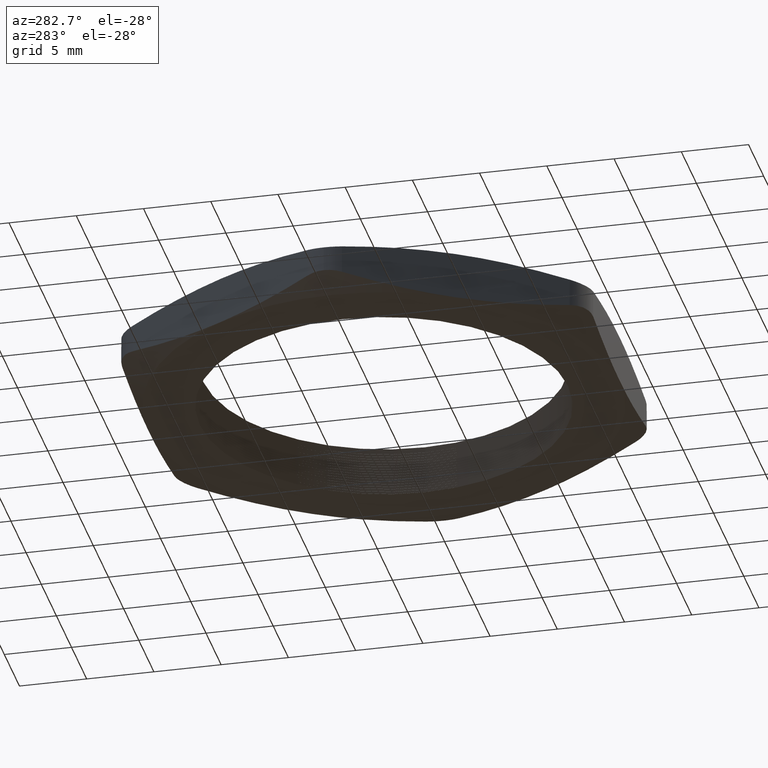
[diagram: clean part render]
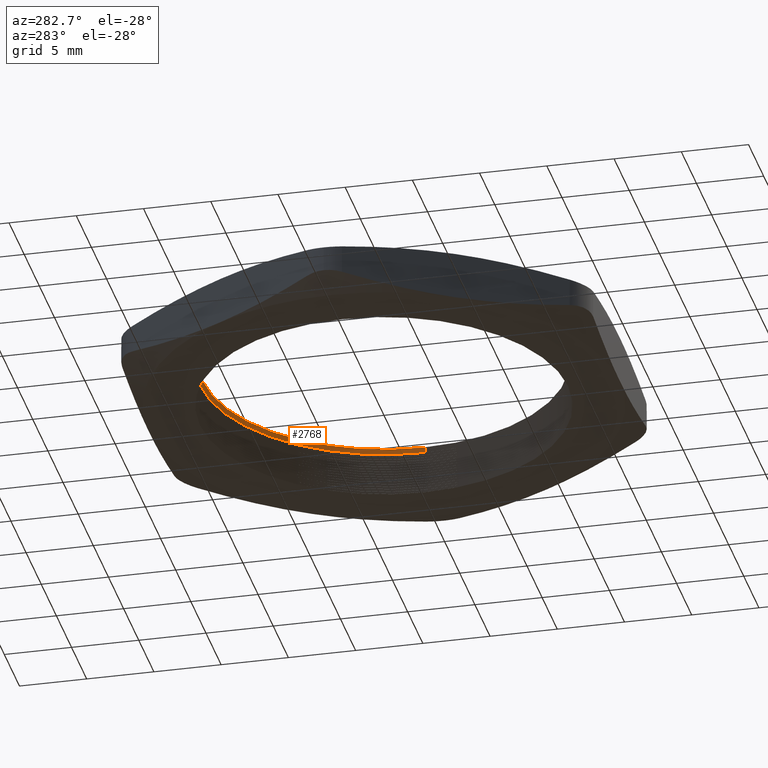
[diagram: same view with one face highlighted and labeled with its STEP entity id]
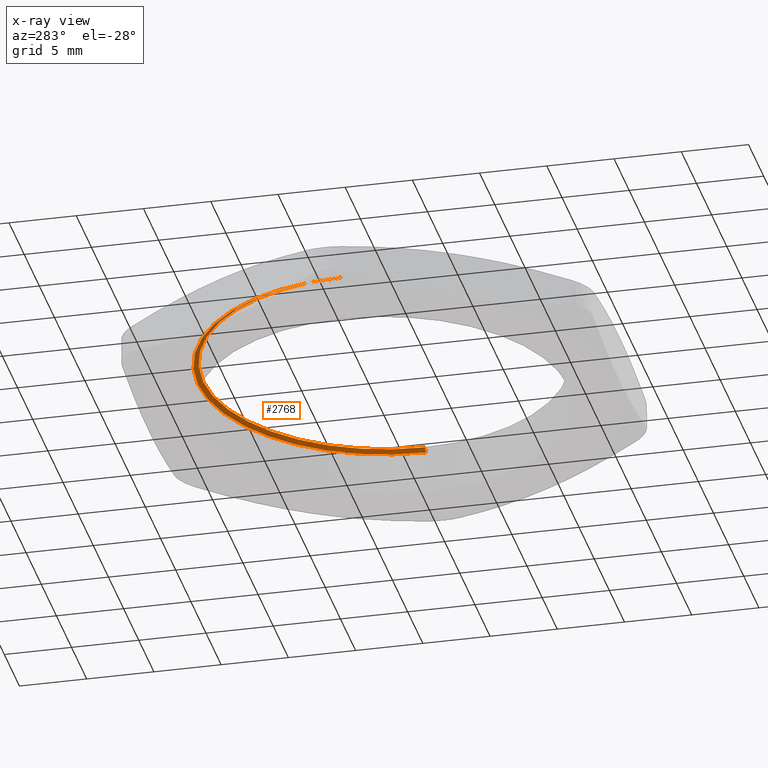
[diagram: x-ray of the same camera — body ghosted, the highlighted face saturated]
A machine part, auxiliary view. The second image highlights one B-rep face of the part: STEP entity #2768.
The next image is the same camera in x-ray: the body ghosted, the highlighted face saturated — about 21% of this face is hidden behind the body in this view.
In plain terms, the highlighted conical surface has half-angle 60 deg.
Its self-contained STEP definition (entity closure, byte-faithful):
#112 = EDGE_CURVE ( 'NONE', #682, #681, #1070, .T. ) ;
#664 = VERTEX_POINT ( 'NONE', #2051 ) ;
#667 = VERTEX_POINT ( 'NONE', #2045 ) ;
#681 = VERTEX_POINT ( 'NONE', #2079 ) ;
#682 = VERTEX_POINT ( 'NONE', #2078 ) ;
#685 = EDGE_CURVE ( 'NONE', #681, #667, #2077, .T. ) ;
#688 = EDGE_CURVE ( 'NONE', #682, #664, #2126, .T. ) ;
#1066 = DIRECTION ( 'NONE',  ( -1.000000000000000000, 0.0000000000000000000, 0.0000000000000000000 ) ) ;
#1067 = DIRECTION ( 'NONE',  ( 0.0000000000000000000, 0.0000000000000000000, -1.000000000000000000 ) ) ;
#1068 = CARTESIAN_POINT ( 'NONE',  ( 0.0000000000000000000, 0.0000000000000000000, 0.1400000000000000100 ) ) ;
#1069 = AXIS2_PLACEMENT_3D ( 'NONE', #1068, #1067, #1066 ) ;
#1070 = CIRCLE ( 'NONE', #1069, 0.5299999999999999200 ) ;
#2045 = CARTESIAN_POINT ( 'NONE',  ( 0.5450000000000000400, 6.674325055353075000E-017, 0.1313397459621558600 ) ) ;
#2051 = CARTESIAN_POINT ( 'NONE',  ( -0.5450000000000000400, 0.0000000000000000000, 0.1313397459621558600 ) ) ;
#2077 = LINE ( 'NONE', #2129, #2128 ) ;
#2078 = CARTESIAN_POINT ( 'NONE',  ( -0.5299999999999999200, 0.0000000000000000000, 0.1400000000000000100 ) ) ;
#2079 = CARTESIAN_POINT ( 'NONE',  ( 0.5299999999999999200, 6.582476545417023100E-017, 0.1400000000000000100 ) ) ;
#2123 = DIRECTION ( 'NONE',  ( -0.8660254037844447000, 0.0000000000000000000, -0.4999999999999893400 ) ) ;
#2124 = VECTOR ( 'NONE', #2123, 39.37007874015748100 ) ;
#2125 = CARTESIAN_POINT ( 'NONE',  ( -0.5450000000000000400, 0.0000000000000000000, 0.1313397459621558600 ) ) ;
#2126 = LINE ( 'NONE', #2125, #2124 ) ;
#2127 = DIRECTION ( 'NONE',  ( 0.8660254037844447000, 1.060575238724914400E-016, -0.4999999999999893400 ) ) ;
#2128 = VECTOR ( 'NONE', #2127, 39.37007874015748100 ) ;
#2129 = CARTESIAN_POINT ( 'NONE',  ( 0.5450000000000000400, 6.674325055353075000E-017, 0.1313397459621558600 ) ) ;
#2546 = DIRECTION ( 'NONE',  ( -1.000000000000000000, 0.0000000000000000000, 0.0000000000000000000 ) ) ;
#2547 = DIRECTION ( 'NONE',  ( 0.0000000000000000000, 0.0000000000000000000, -1.000000000000000000 ) ) ;
#2548 = CARTESIAN_POINT ( 'NONE',  ( 0.0000000000000000000, 0.0000000000000000000, 0.1313397459621558600 ) ) ;
#2549 = AXIS2_PLACEMENT_3D ( 'NONE', #2548, #2547, #2546 ) ;
#2551 = CONICAL_SURFACE ( 'NONE', #2549, 0.5450000000000000400, 1.047197551196610100 ) ;
#2552 = FACE_OUTER_BOUND ( 'NONE', #2772, .T. ) ;
#2553 = DIRECTION ( 'NONE',  ( -1.000000000000000000, 0.0000000000000000000, 0.0000000000000000000 ) ) ;
#2554 = DIRECTION ( 'NONE',  ( 0.0000000000000000000, 0.0000000000000000000, -1.000000000000000000 ) ) ;
#2555 = CARTESIAN_POINT ( 'NONE',  ( 0.0000000000000000000, 0.0000000000000000000, 0.1313397459621558600 ) ) ;
#2556 = AXIS2_PLACEMENT_3D ( 'NONE', #2555, #2554, #2553 ) ;
#2557 = CIRCLE ( 'NONE', #2556, 0.5450000000000000400 ) ;
#2761 = ORIENTED_EDGE ( 'NONE', *, *, #688, .T. ) ;
#2762 = EDGE_CURVE ( 'NONE', #664, #667, #2557, .T. ) ;
#2763 = ORIENTED_EDGE ( 'NONE', *, *, #2762, .T. ) ;
#2768 = ADVANCED_FACE ( 'NONE', ( #2552 ), #2551, .F. ) ;
#2769 = ORIENTED_EDGE ( 'NONE', *, *, #112, .F. ) ;
#2770 = ORIENTED_EDGE ( 'NONE', *, *, #685, .F. ) ;
#2772 = EDGE_LOOP ( 'NONE', ( #2770, #2769, #2761, #2763 ) ) ;